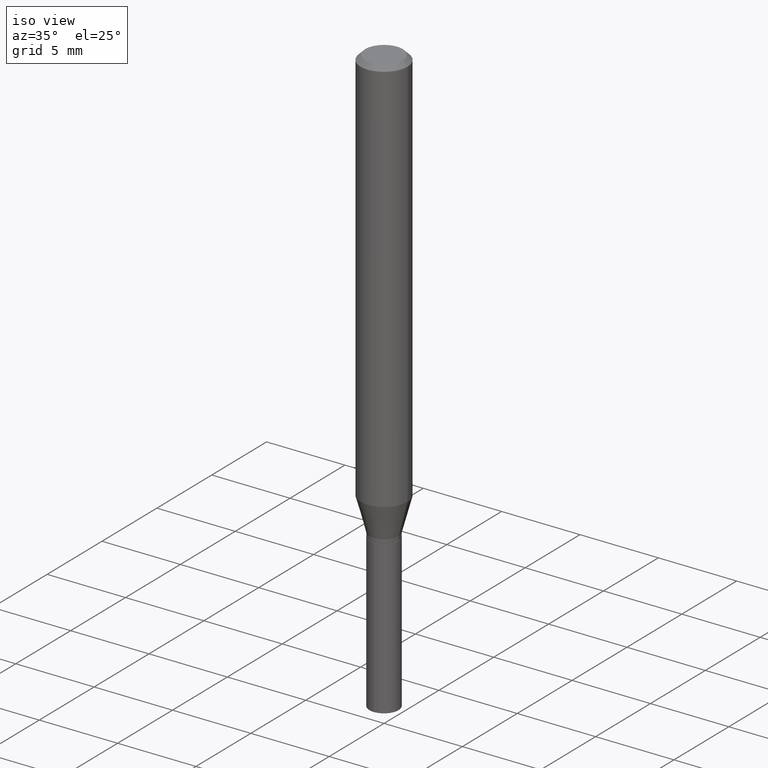
[diagram: clean part render]
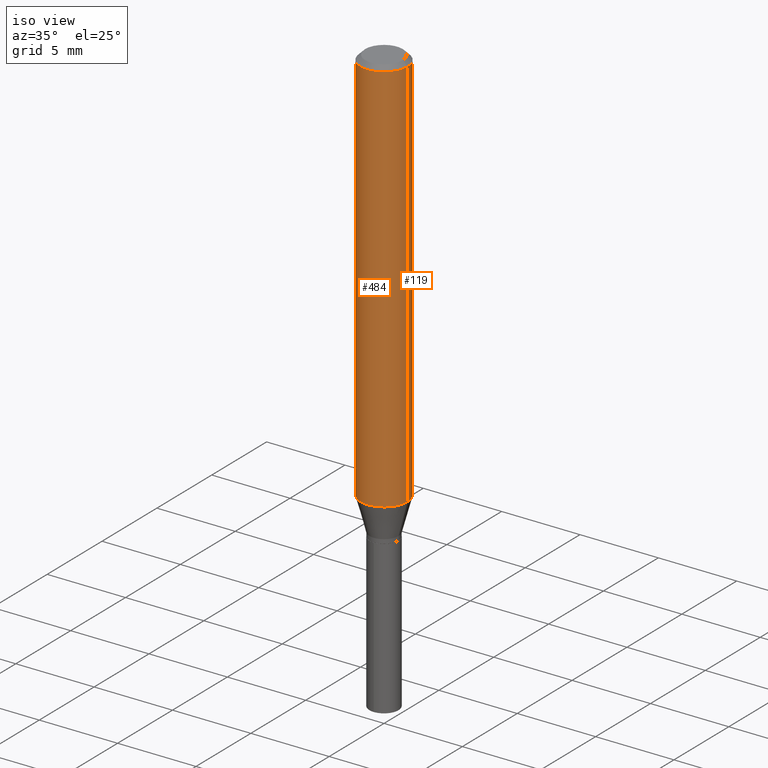
[diagram: same view with one multi-face feature highlighted, each face labeled with its STEP entity id]
A machine part, iso view. The highlighted faces form ONE feature: a constant-radius fillet chain: 2 tangent blend faces with common blend radius 1.4999 mm. The faces share edges in the B-rep.
Their STEP definitions:
[1] entity #119 (Cylinder):
#6 = CARTESIAN_POINT ( 'NONE',  ( 2.888098660104663328E-31, -4.123439461173779030E-17, -0.01181000000000006871 ) ) ;
#22 = VERTEX_POINT ( 'NONE', #318 ) ;
#25 = CIRCLE ( 'NONE', #400, 0.05904999999999999832 ) ;
#35 = CYLINDRICAL_SURFACE ( 'NONE', #130, 0.05905000000000006771 ) ;
#82 = EDGE_CURVE ( 'NONE', #137, #150, #165, .T. ) ;
#86 = ORIENTED_EDGE ( 'NONE', *, *, #196, .F. ) ;
#107 = EDGE_LOOP ( 'NONE', ( #121, #316, #86, #126 ) ) ;
#110 = CARTESIAN_POINT ( 'NONE',  ( -0.05904999999999999832, -1.346285647111344035E-15, -0.01181000000000006871 ) ) ;
#111 = CARTESIAN_POINT ( 'NONE',  ( -0.05905000000000006771, 4.195754854663396409E-16, -2.904631170795525045E-30 ) ) ;
#119 = ADVANCED_FACE ( 'NONE', ( #335 ), #35, .T. ) ;
#121 = ORIENTED_EDGE ( 'NONE', *, *, #365, .T. ) ;
#126 = ORIENTED_EDGE ( 'NONE', *, *, #312, .F. ) ;
#130 = AXIS2_PLACEMENT_3D ( 'NONE', #369, #188, #177 ) ;
#137 = VERTEX_POINT ( 'NONE', #212 ) ;
#150 = VERTEX_POINT ( 'NONE', #110 ) ;
#151 = DIRECTION ( 'NONE',  ( -2.445468806185136877E-29, 3.491481338843145188E-15, 1.000000000000000000 ) ) ;
#165 = LINE ( 'NONE', #111, #173 ) ;
#173 = VECTOR ( 'NONE', #189, 39.37007874015748143 ) ;
#177 = DIRECTION ( 'NONE',  ( 1.000000000000000000, -6.982962677686266711E-15, 4.876176775795936353E-29 ) ) ;
#188 = DIRECTION ( 'NONE',  ( -2.445468806185136597E-29, 3.491481338843145583E-15, 1.000000000000000000 ) ) ;
#189 = DIRECTION ( 'NONE',  ( -2.445468806185136877E-29, 3.491481338843145188E-15, 1.000000000000000000 ) ) ;
#191 = VECTOR ( 'NONE', #151, 39.37007874015748143 ) ;
#196 = EDGE_CURVE ( 'NONE', #337, #150, #25, .T. ) ;
#211 = CARTESIAN_POINT ( 'NONE',  ( 0.05905000000000006771, -4.123439461173745257E-16, 2.879382386107503723E-30 ) ) ;
#212 = CARTESIAN_POINT ( 'NONE',  ( -0.05905000000000013016, -3.070912385077291412E-15, -0.9997154593700782188 ) ) ;
#287 = CARTESIAN_POINT ( 'NONE',  ( 0.05904999999999999832, -4.535783407291118600E-16, -0.01181000000000006871 ) ) ;
#292 = DIRECTION ( 'NONE',  ( 1.000000000000000000, -6.982962677686265133E-15, 0.000000000000000000 ) ) ;
#308 = AXIS2_PLACEMENT_3D ( 'NONE', #445, #368, #292 ) ;
#309 = DIRECTION ( 'NONE',  ( 1.000000000000000000, -6.982962677686266711E-15, 0.000000000000000000 ) ) ;
#312 = EDGE_CURVE ( 'NONE', #22, #337, #378, .T. ) ;
#316 = ORIENTED_EDGE ( 'NONE', *, *, #82, .T. ) ;
#318 = CARTESIAN_POINT ( 'NONE',  ( 0.05905000000000013016, -3.902831816661005825E-15, -0.9997154593700782188 ) ) ;
#335 = FACE_OUTER_BOUND ( 'NONE', #107, .T. ) ;
#337 = VERTEX_POINT ( 'NONE', #287 ) ;
#351 = DIRECTION ( 'NONE',  ( -2.445468806185136597E-29, 3.491481338843145583E-15, 1.000000000000000000 ) ) ;
#365 = EDGE_CURVE ( 'NONE', #22, #137, #465, .T. ) ;
#368 = DIRECTION ( 'NONE',  ( -2.445468806185136597E-29, 3.491481338843145583E-15, 1.000000000000000000 ) ) ;
#369 = CARTESIAN_POINT ( 'NONE',  ( 0.000000000000000000, 0.000000000000000000, 0.000000000000000000 ) ) ;
#378 = LINE ( 'NONE', #211, #191 ) ;
#400 = AXIS2_PLACEMENT_3D ( 'NONE', #6, #351, #309 ) ;
#445 = CARTESIAN_POINT ( 'NONE',  ( 2.444772970950570480E-29, -3.490487870543630905E-15, -0.9997154593700782188 ) ) ;
#465 = CIRCLE ( 'NONE', #308, 0.05905000000000013016 ) ;
[2] entity #484 (Cylinder):
#17 = CYLINDRICAL_SURFACE ( 'NONE', #41, 0.05905000000000006771 ) ;
#18 = CIRCLE ( 'NONE', #280, 0.05905000000000013016 ) ;
#22 = VERTEX_POINT ( 'NONE', #318 ) ;
#38 = FACE_OUTER_BOUND ( 'NONE', #398, .T. ) ;
#41 = AXIS2_PLACEMENT_3D ( 'NONE', #306, #462, #239 ) ;
#61 = ORIENTED_EDGE ( 'NONE', *, *, #187, .F. ) ;
#82 = EDGE_CURVE ( 'NONE', #137, #150, #165, .T. ) ;
#89 = EDGE_CURVE ( 'NONE', #137, #22, #18, .T. ) ;
#110 = CARTESIAN_POINT ( 'NONE',  ( -0.05904999999999999832, -1.346285647111344035E-15, -0.01181000000000006871 ) ) ;
#111 = CARTESIAN_POINT ( 'NONE',  ( -0.05905000000000006771, 4.195754854663396409E-16, -2.904631170795525045E-30 ) ) ;
#113 = CARTESIAN_POINT ( 'NONE',  ( 2.888098660104663328E-31, -4.123439461173779030E-17, -0.01181000000000006871 ) ) ;
#127 = CARTESIAN_POINT ( 'NONE',  ( 2.444772970950570480E-29, -3.490487870543630905E-15, -0.9997154593700782188 ) ) ;
#137 = VERTEX_POINT ( 'NONE', #212 ) ;
#150 = VERTEX_POINT ( 'NONE', #110 ) ;
#151 = DIRECTION ( 'NONE',  ( -2.445468806185136877E-29, 3.491481338843145188E-15, 1.000000000000000000 ) ) ;
#165 = LINE ( 'NONE', #111, #173 ) ;
#173 = VECTOR ( 'NONE', #189, 39.37007874015748143 ) ;
#184 = DIRECTION ( 'NONE',  ( 1.000000000000000000, -6.982962677686266711E-15, 0.000000000000000000 ) ) ;
#187 = EDGE_CURVE ( 'NONE', #150, #337, #235, .T. ) ;
#189 = DIRECTION ( 'NONE',  ( -2.445468806185136877E-29, 3.491481338843145188E-15, 1.000000000000000000 ) ) ;
#191 = VECTOR ( 'NONE', #151, 39.37007874015748143 ) ;
#211 = CARTESIAN_POINT ( 'NONE',  ( 0.05905000000000006771, -4.123439461173745257E-16, 2.879382386107503723E-30 ) ) ;
#212 = CARTESIAN_POINT ( 'NONE',  ( -0.05905000000000013016, -3.070912385077291412E-15, -0.9997154593700782188 ) ) ;
#235 = CIRCLE ( 'NONE', #347, 0.05904999999999999832 ) ;
#239 = DIRECTION ( 'NONE',  ( 1.000000000000000000, -6.982962677686266711E-15, 4.876176775795936353E-29 ) ) ;
#253 = DIRECTION ( 'NONE',  ( 1.000000000000000000, -6.982962677686265133E-15, 0.000000000000000000 ) ) ;
#280 = AXIS2_PLACEMENT_3D ( 'NONE', #127, #366, #253 ) ;
#287 = CARTESIAN_POINT ( 'NONE',  ( 0.05904999999999999832, -4.535783407291118600E-16, -0.01181000000000006871 ) ) ;
#290 = ORIENTED_EDGE ( 'NONE', *, *, #312, .T. ) ;
#306 = CARTESIAN_POINT ( 'NONE',  ( 0.000000000000000000, 0.000000000000000000, 0.000000000000000000 ) ) ;
#312 = EDGE_CURVE ( 'NONE', #22, #337, #378, .T. ) ;
#318 = CARTESIAN_POINT ( 'NONE',  ( 0.05905000000000013016, -3.902831816661005825E-15, -0.9997154593700782188 ) ) ;
#337 = VERTEX_POINT ( 'NONE', #287 ) ;
#346 = ORIENTED_EDGE ( 'NONE', *, *, #82, .F. ) ;
#347 = AXIS2_PLACEMENT_3D ( 'NONE', #113, #377, #184 ) ;
#366 = DIRECTION ( 'NONE',  ( -2.445468806185136597E-29, 3.491481338843145583E-15, 1.000000000000000000 ) ) ;
#377 = DIRECTION ( 'NONE',  ( -2.445468806185136597E-29, 3.491481338843145583E-15, 1.000000000000000000 ) ) ;
#378 = LINE ( 'NONE', #211, #191 ) ;
#398 = EDGE_LOOP ( 'NONE', ( #346, #415, #290, #61 ) ) ;
#415 = ORIENTED_EDGE ( 'NONE', *, *, #89, .T. ) ;
#462 = DIRECTION ( 'NONE',  ( -2.445468806185136597E-29, 3.491481338843145583E-15, 1.000000000000000000 ) ) ;
#484 = ADVANCED_FACE ( 'NONE', ( #38 ), #17, .T. ) ;